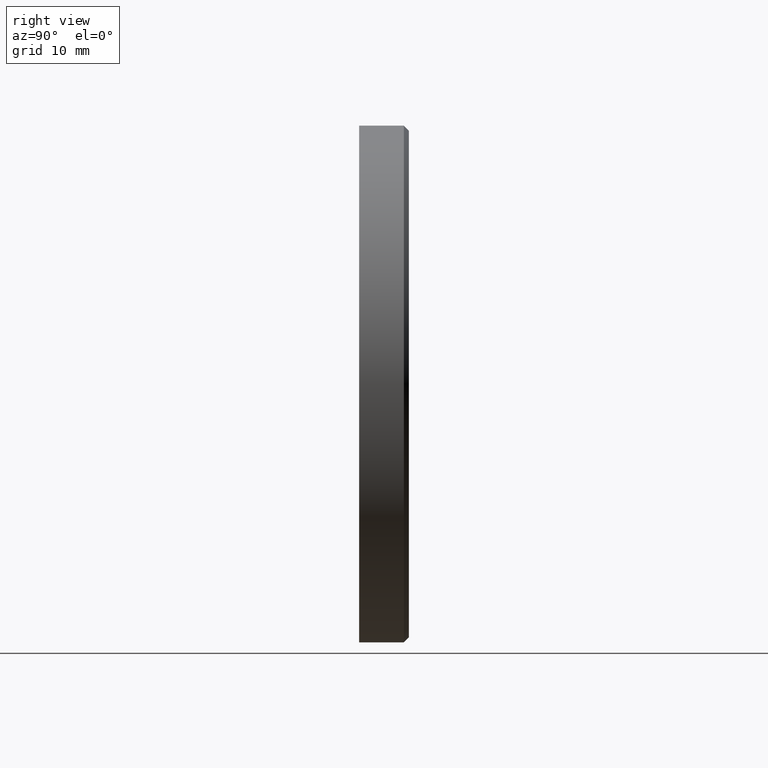
[diagram: clean part render]
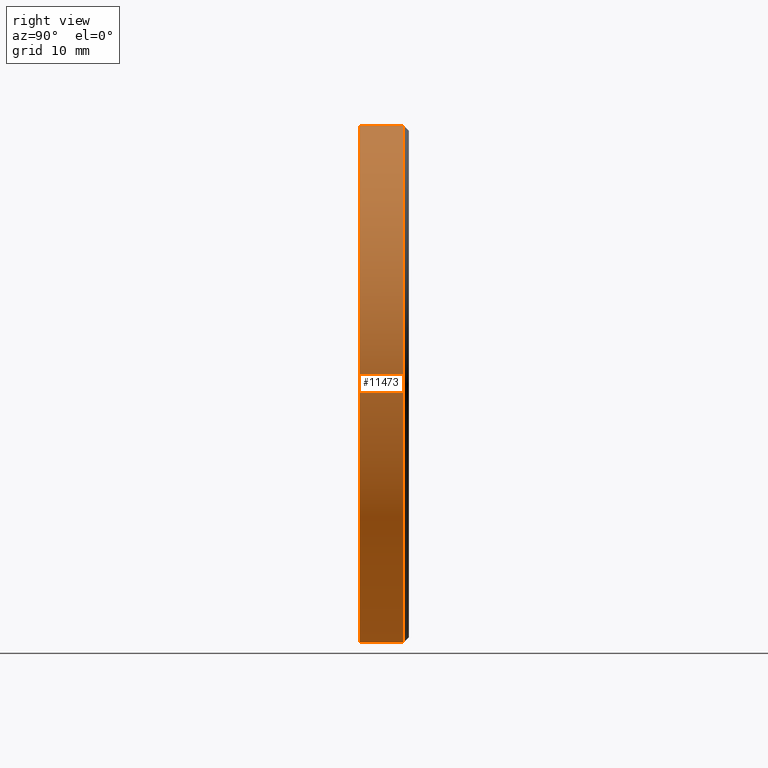
[diagram: same view with one face highlighted and labeled with its STEP entity id]
A machine part, right view. The second image highlights one B-rep face of the part: STEP entity #11473.
In plain terms, the highlighted cylindrical surface (partial cylindrical patch) has radius 26 mm, axis along (-0, -1, -0).
Its self-contained STEP definition (entity closure, byte-faithful):
#479 = VERTEX_POINT ( 'NONE', #11672 ) ;
#833 = CYLINDRICAL_SURFACE ( 'NONE', #10124, 26.00000000000000000 ) ;
#950 = LINE ( 'NONE', #15451, #12097 ) ;
#1282 = DIRECTION ( 'NONE',  ( -0.000000000000000000, -1.000000000000000000, -0.000000000000000000 ) ) ;
#2043 = CARTESIAN_POINT ( 'NONE',  ( 0.000000000000000000, -2.500000000000000000, 0.000000000000000000 ) ) ;
#2118 = DIRECTION ( 'NONE',  ( 0.000000000000000000, 0.000000000000000000, 1.000000000000000000 ) ) ;
#2372 = CARTESIAN_POINT ( 'NONE',  ( 3.184081677783118191E-15, -2.500000000000000000, 26.00000000000000000 ) ) ;
#2507 = EDGE_CURVE ( 'NONE', #479, #6017, #13762, .T. ) ;
#2550 = CARTESIAN_POINT ( 'NONE',  ( 0.000000000000000000, -2.500000000000000000, -26.00000000000000000 ) ) ;
#2949 = VERTEX_POINT ( 'NONE', #2550 ) ;
#3626 = ORIENTED_EDGE ( 'NONE', *, *, #10344, .T. ) ;
#3678 = FACE_OUTER_BOUND ( 'NONE', #10031, .T. ) ;
#4004 = CIRCLE ( 'NONE', #14288, 26.00000000000000000 ) ;
#4391 = CIRCLE ( 'NONE', #13470, 26.00000000000000000 ) ;
#4523 = CARTESIAN_POINT ( 'NONE',  ( 0.000000000000000000, 2.000000000000003553, 0.000000000000000000 ) ) ;
#5742 = DIRECTION ( 'NONE',  ( 0.000000000000000000, 0.000000000000000000, -1.000000000000000000 ) ) ;
#5793 = CARTESIAN_POINT ( 'NONE',  ( 0.000000000000000000, -2.500000000000000444, 0.000000000000000000 ) ) ;
#6017 = VERTEX_POINT ( 'NONE', #2372 ) ;
#6927 = VERTEX_POINT ( 'NONE', #12800 ) ;
#7380 = ORIENTED_EDGE ( 'NONE', *, *, #14222, .F. ) ;
#8817 = ORIENTED_EDGE ( 'NONE', *, *, #10662, .F. ) ;
#9353 = DIRECTION ( 'NONE',  ( 0.000000000000000000, 0.000000000000000000, -1.000000000000000000 ) ) ;
#9366 = DIRECTION ( 'NONE',  ( -0.000000000000000000, -1.000000000000000000, -0.000000000000000000 ) ) ;
#10031 = EDGE_LOOP ( 'NONE', ( #3626, #14090, #8817, #7380 ) ) ;
#10124 = AXIS2_PLACEMENT_3D ( 'NONE', #5793, #14286, #5742 ) ;
#10344 = EDGE_CURVE ( 'NONE', #6927, #479, #4391, .T. ) ;
#10662 = EDGE_CURVE ( 'NONE', #2949, #6017, #4004, .T. ) ;
#11473 = ADVANCED_FACE ( 'NONE', ( #3678 ), #833, .T. ) ;
#11672 = CARTESIAN_POINT ( 'NONE',  ( 3.184081677783118191E-15, 2.000000000000003553, 26.00000000000000000 ) ) ;
#11965 = DIRECTION ( 'NONE',  ( -0.000000000000000000, -1.000000000000000000, -0.000000000000000000 ) ) ;
#12097 = VECTOR ( 'NONE', #11965, 1000.000000000000000 ) ;
#12800 = CARTESIAN_POINT ( 'NONE',  ( 0.000000000000000000, 2.000000000000003553, -26.00000000000000000 ) ) ;
#13470 = AXIS2_PLACEMENT_3D ( 'NONE', #4523, #9366, #2118 ) ;
#13762 = LINE ( 'NONE', #15638, #14709 ) ;
#14090 = ORIENTED_EDGE ( 'NONE', *, *, #2507, .T. ) ;
#14222 = EDGE_CURVE ( 'NONE', #6927, #2949, #950, .T. ) ;
#14286 = DIRECTION ( 'NONE',  ( -0.000000000000000000, -1.000000000000000000, -0.000000000000000000 ) ) ;
#14288 = AXIS2_PLACEMENT_3D ( 'NONE', #2043, #15414, #9353 ) ;
#14709 = VECTOR ( 'NONE', #1282, 1000.000000000000000 ) ;
#15414 = DIRECTION ( 'NONE',  ( -0.000000000000000000, -1.000000000000000000, -0.000000000000000000 ) ) ;
#15451 = CARTESIAN_POINT ( 'NONE',  ( 0.000000000000000000, -2.500000000000000444, -26.00000000000000000 ) ) ;
#15638 = CARTESIAN_POINT ( 'NONE',  ( 3.184081677783118191E-15, -2.500000000000000444, 26.00000000000000000 ) ) ;